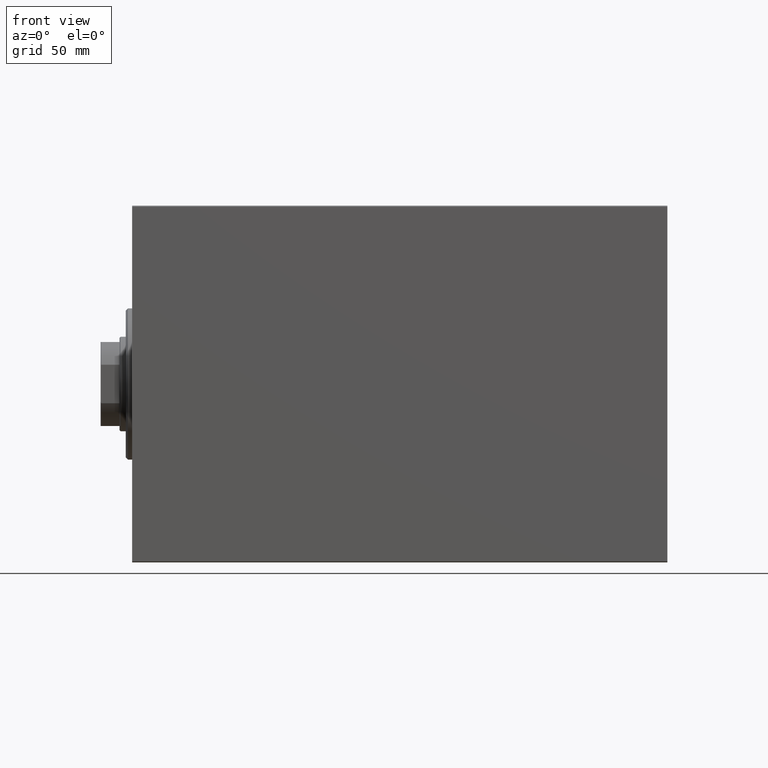
[diagram: clean part render]
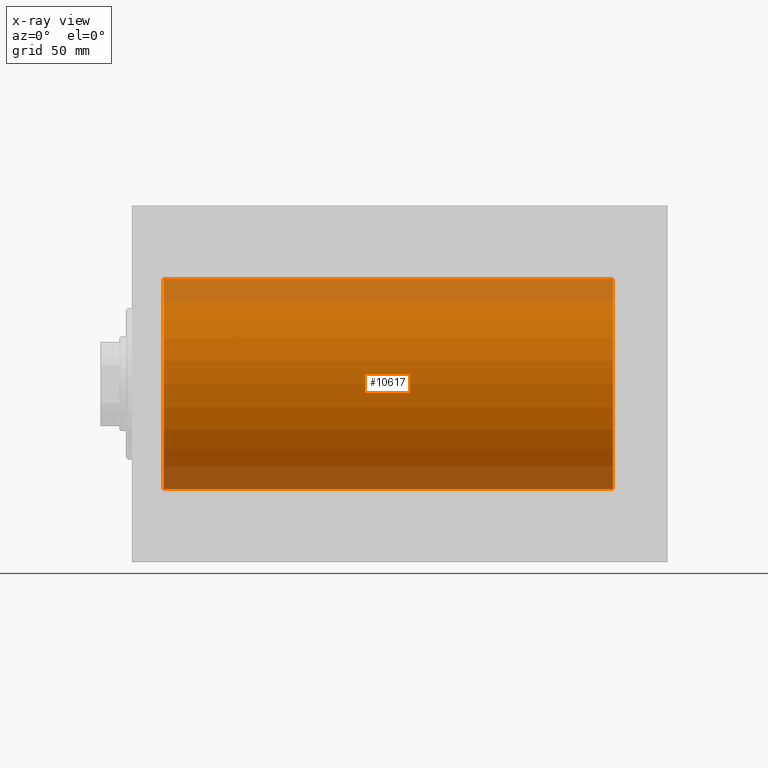
[diagram: x-ray — body ghosted, one internal face saturated and labeled with its STEP entity id]
A machine part, front view, then the same camera in x-ray: the body is ghosted and one INTERNAL B-rep face — a face not visible from any outside direction — is saturated and labeled: STEP entity #10617.
In plain terms, the highlighted cylindrical surface (partial cylindrical patch) has radius 50 mm, axis along (-1, -0, -0).
Its self-contained STEP definition (entity closure, byte-faithful):
#1208 = FACE_OUTER_BOUND ( 'NONE', #35223, .T. ) ;
#1493 = DIRECTION ( 'NONE',  ( 0.000000000000000000, 0.000000000000000000, 1.000000000000000000 ) ) ;
#3174 = CARTESIAN_POINT ( 'NONE',  ( 229.0000000000000000, 6.123233995736764507E-15, -50.00000000000000000 ) ) ;
#4357 = CARTESIAN_POINT ( 'NONE',  ( 229.0000000000000000, 0.000000000000000000, 0.000000000000000000 ) ) ;
#5323 = DIRECTION ( 'NONE',  ( -1.000000000000000000, -0.000000000000000000, -0.000000000000000000 ) ) ;
#7791 = AXIS2_PLACEMENT_3D ( 'NONE', #24628, #20612, #38056 ) ;
#8227 = DIRECTION ( 'NONE',  ( -1.000000000000000000, 0.000000000000000000, 0.000000000000000000 ) ) ;
#10617 = ADVANCED_FACE ( 'NONE', ( #1208 ), #34944, .F. ) ;
#10798 = VERTEX_POINT ( 'NONE', #26653 ) ;
#11486 = DIRECTION ( 'NONE',  ( 0.000000000000000000, 0.000000000000000000, 1.000000000000000000 ) ) ;
#11672 = ORIENTED_EDGE ( 'NONE', *, *, #28852, .F. ) ;
#12516 = ORIENTED_EDGE ( 'NONE', *, *, #40916, .F. ) ;
#14907 = VECTOR ( 'NONE', #43176, 1000.000000000000000 ) ;
#16554 = CARTESIAN_POINT ( 'NONE',  ( 229.0000000000000000, 6.123233995736764507E-15, -50.00000000000000000 ) ) ;
#17949 = DIRECTION ( 'NONE',  ( -1.000000000000000000, -0.000000000000000000, -0.000000000000000000 ) ) ;
#18540 = CIRCLE ( 'NONE', #7791, 50.00000000000000000 ) ;
#20612 = DIRECTION ( 'NONE',  ( -1.000000000000000000, 0.000000000000000000, 0.000000000000000000 ) ) ;
#21654 = AXIS2_PLACEMENT_3D ( 'NONE', #4357, #17949, #11486 ) ;
#22626 = CARTESIAN_POINT ( 'NONE',  ( 14.99999999999998579, 6.123233995736764507E-15, -50.00000000000000000 ) ) ;
#23325 = ORIENTED_EDGE ( 'NONE', *, *, #34780, .T. ) ;
#24628 = CARTESIAN_POINT ( 'NONE',  ( 14.99999999999998579, 0.000000000000000000, 0.000000000000000000 ) ) ;
#24945 = CARTESIAN_POINT ( 'NONE',  ( 229.0000000000000000, 0.000000000000000000, 0.000000000000000000 ) ) ;
#25060 = VERTEX_POINT ( 'NONE', #38352 ) ;
#26653 = CARTESIAN_POINT ( 'NONE',  ( 14.99999999999998579, 0.000000000000000000, 50.00000000000000000 ) ) ;
#28852 = EDGE_CURVE ( 'NONE', #25060, #10798, #29197, .T. ) ;
#29197 = LINE ( 'NONE', #35917, #34127 ) ;
#29263 = VERTEX_POINT ( 'NONE', #3174 ) ;
#33951 = ORIENTED_EDGE ( 'NONE', *, *, #34899, .T. ) ;
#34127 = VECTOR ( 'NONE', #5323, 1000.000000000000000 ) ;
#34780 = EDGE_CURVE ( 'NONE', #39316, #10798, #18540, .T. ) ;
#34899 = EDGE_CURVE ( 'NONE', #29263, #39316, #40045, .T. ) ;
#34944 = CYLINDRICAL_SURFACE ( 'NONE', #21654, 50.00000000000000000 ) ;
#35223 = EDGE_LOOP ( 'NONE', ( #12516, #33951, #23325, #11672 ) ) ;
#35917 = CARTESIAN_POINT ( 'NONE',  ( 229.0000000000000000, 0.000000000000000000, 50.00000000000000000 ) ) ;
#36460 = CIRCLE ( 'NONE', #43599, 50.00000000000000000 ) ;
#38056 = DIRECTION ( 'NONE',  ( 0.000000000000000000, 0.000000000000000000, 1.000000000000000000 ) ) ;
#38352 = CARTESIAN_POINT ( 'NONE',  ( 229.0000000000000000, 0.000000000000000000, 50.00000000000000000 ) ) ;
#39316 = VERTEX_POINT ( 'NONE', #22626 ) ;
#40045 = LINE ( 'NONE', #16554, #14907 ) ;
#40916 = EDGE_CURVE ( 'NONE', #29263, #25060, #36460, .T. ) ;
#43176 = DIRECTION ( 'NONE',  ( -1.000000000000000000, -0.000000000000000000, -0.000000000000000000 ) ) ;
#43599 = AXIS2_PLACEMENT_3D ( 'NONE', #24945, #8227, #1493 ) ;